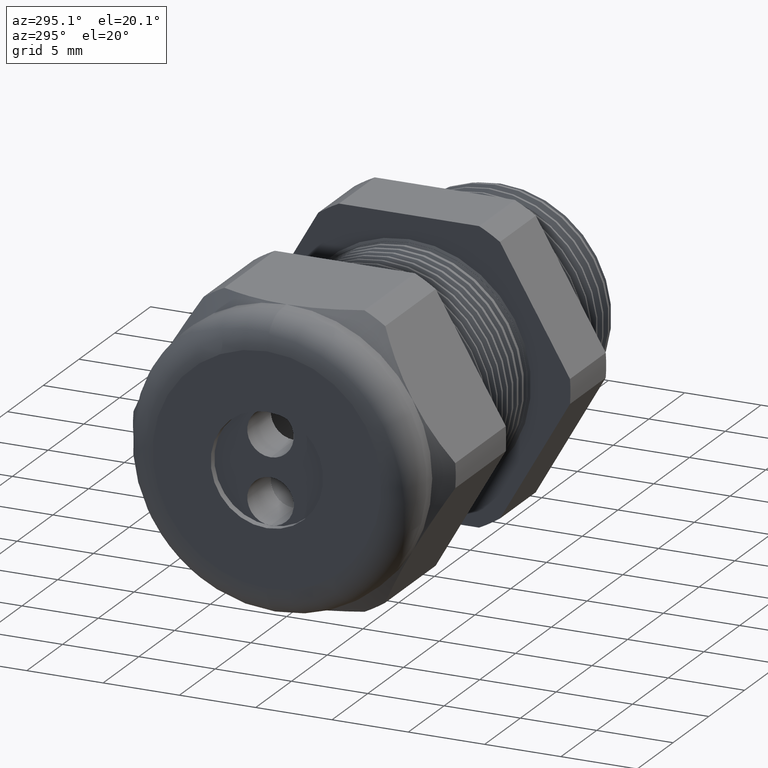
[diagram: clean part render]
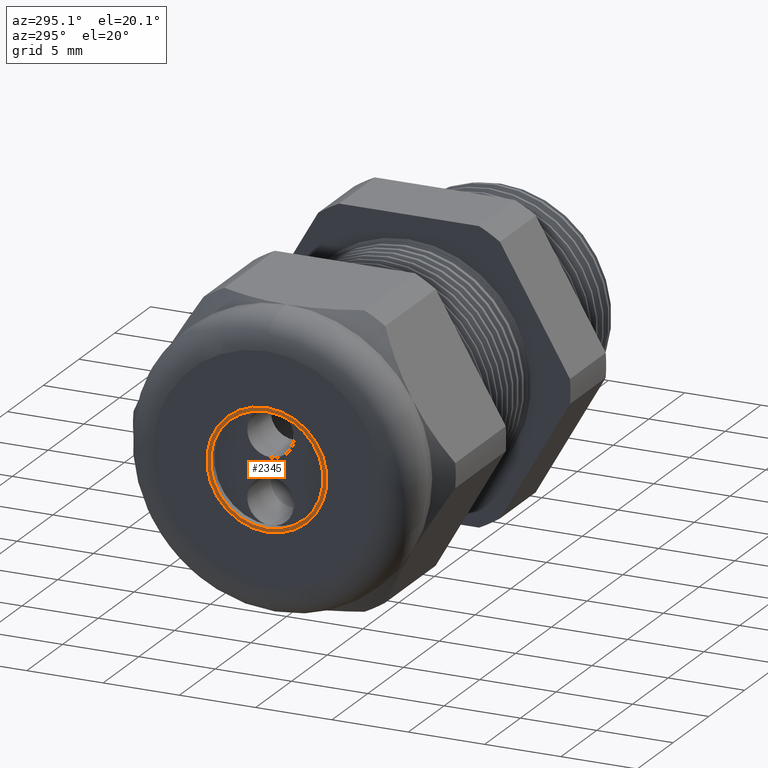
[diagram: same view with one face highlighted and labeled with its STEP entity id]
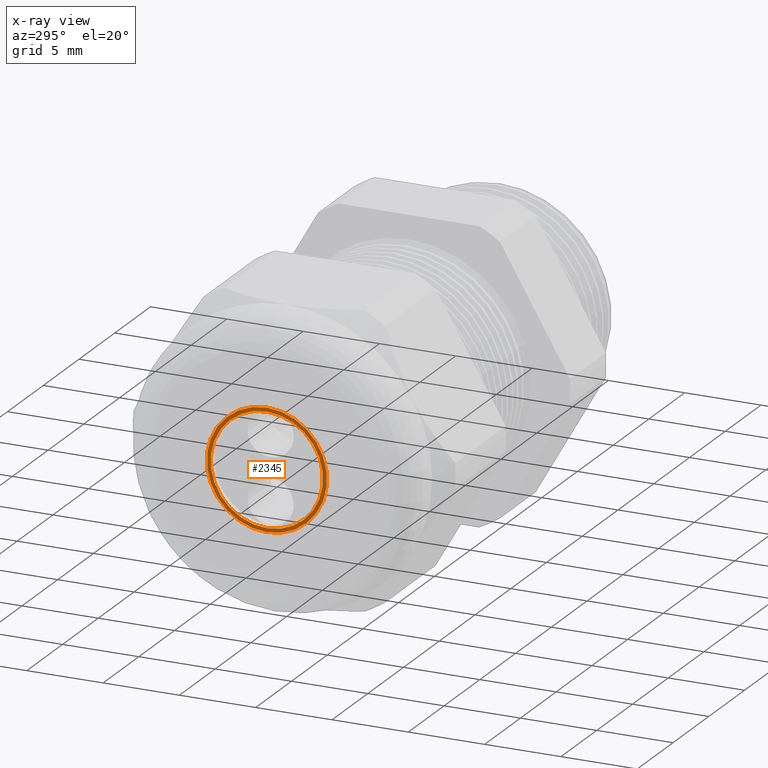
[diagram: x-ray of the same camera — body ghosted, the highlighted face saturated]
A machine part, auxiliary view. The second image highlights one B-rep face of the part: STEP entity #2345.
The next image is the same camera in x-ray: the body ghosted, the highlighted face saturated — about 0% of this face is hidden behind the body in this view.
In plain terms, the highlighted planar face has unit normal (-1, 0, 0).
Its self-contained STEP definition (entity closure, byte-faithful):
#41 = PLANE ( 'NONE',  #101 ) ;
#42 = FACE_OUTER_BOUND ( 'NONE', #2341, .T. ) ;
#43 = FACE_BOUND ( 'NONE', #2287, .T. ) ;
#45 = DIRECTION ( 'NONE',  ( 0.0000000000000000000, 0.0000000000000000000, 1.000000000000000000 ) ) ;
#46 = DIRECTION ( 'NONE',  ( -1.000000000000000000, 0.0000000000000000000, 0.0000000000000000000 ) ) ;
#47 = AXIS2_PLACEMENT_3D ( 'NONE', #52, #46, #45 ) ;
#48 = CIRCLE ( 'NONE', #47, 0.1449999999999999900 ) ;
#52 = CARTESIAN_POINT ( 'NONE',  ( -1.289999999999999800, 0.0000000000000000000, 0.0000000000000000000 ) ) ;
#98 = DIRECTION ( 'NONE',  ( 0.0000000000000000000, 0.0000000000000000000, 1.000000000000000000 ) ) ;
#99 = DIRECTION ( 'NONE',  ( -1.000000000000000000, 0.0000000000000000000, 0.0000000000000000000 ) ) ;
#100 = CARTESIAN_POINT ( 'NONE',  ( -1.289999999999999800, 0.0000000000000000000, 0.0000000000000000000 ) ) ;
#101 = AXIS2_PLACEMENT_3D ( 'NONE', #100, #99, #98 ) ;
#278 = CARTESIAN_POINT ( 'NONE',  ( -1.289999999999999800, 0.0000000000000000000, 0.1449999999999999900 ) ) ;
#279 = CARTESIAN_POINT ( 'NONE',  ( -1.289999999999999800, 1.775737858763661900E-017, -0.1449999999999999900 ) ) ;
#380 = DIRECTION ( 'NONE',  ( 0.0000000000000000000, 0.0000000000000000000, 1.000000000000000000 ) ) ;
#381 = DIRECTION ( 'NONE',  ( -1.000000000000000000, 0.0000000000000000000, 0.0000000000000000000 ) ) ;
#382 = CARTESIAN_POINT ( 'NONE',  ( -1.289999999999999800, 0.0000000000000000000, 0.0000000000000000000 ) ) ;
#383 = AXIS2_PLACEMENT_3D ( 'NONE', #382, #381, #380 ) ;
#384 = CIRCLE ( 'NONE', #383, 0.1449999999999999900 ) ;
#385 = CARTESIAN_POINT ( 'NONE',  ( -1.289999999999999800, 1.898202538678397000E-017, -0.1550000000000000000 ) ) ;
#413 = CARTESIAN_POINT ( 'NONE',  ( -1.289999999999999800, 0.0000000000000000000, 0.1550000000000000000 ) ) ;
#414 = DIRECTION ( 'NONE',  ( 0.0000000000000000000, 0.0000000000000000000, 1.000000000000000000 ) ) ;
#415 = DIRECTION ( 'NONE',  ( -1.000000000000000000, 0.0000000000000000000, 0.0000000000000000000 ) ) ;
#416 = CARTESIAN_POINT ( 'NONE',  ( -1.289999999999999800, 0.0000000000000000000, 0.0000000000000000000 ) ) ;
#417 = AXIS2_PLACEMENT_3D ( 'NONE', #416, #415, #414 ) ;
#418 = CIRCLE ( 'NONE', #417, 0.1550000000000000000 ) ;
#2278 = EDGE_CURVE ( 'NONE', #2489, #2505, #4793, .T. ) ;
#2287 = EDGE_LOOP ( 'NONE', ( #2332, #2333 ) ) ;
#2332 = ORIENTED_EDGE ( 'NONE', *, *, #2338, .F. ) ;
#2333 = ORIENTED_EDGE ( 'NONE', *, *, #2492, .F. ) ;
#2334 = ORIENTED_EDGE ( 'NONE', *, *, #2504, .T. ) ;
#2338 = EDGE_CURVE ( 'NONE', #2452, #2451, #48, .T. ) ;
#2339 = ORIENTED_EDGE ( 'NONE', *, *, #2278, .T. ) ;
#2341 = EDGE_LOOP ( 'NONE', ( #2334, #2339 ) ) ;
#2345 = ADVANCED_FACE ( 'NONE', ( #43, #42 ), #41, .T. ) ;
#2451 = VERTEX_POINT ( 'NONE', #279 ) ;
#2452 = VERTEX_POINT ( 'NONE', #278 ) ;
#2489 = VERTEX_POINT ( 'NONE', #385 ) ;
#2492 = EDGE_CURVE ( 'NONE', #2451, #2452, #384, .T. ) ;
#2504 = EDGE_CURVE ( 'NONE', #2505, #2489, #418, .T. ) ;
#2505 = VERTEX_POINT ( 'NONE', #413 ) ;
#4789 = DIRECTION ( 'NONE',  ( 0.0000000000000000000, 0.0000000000000000000, 1.000000000000000000 ) ) ;
#4790 = DIRECTION ( 'NONE',  ( -1.000000000000000000, 0.0000000000000000000, 0.0000000000000000000 ) ) ;
#4791 = CARTESIAN_POINT ( 'NONE',  ( -1.289999999999999800, 0.0000000000000000000, 0.0000000000000000000 ) ) ;
#4792 = AXIS2_PLACEMENT_3D ( 'NONE', #4791, #4790, #4789 ) ;
#4793 = CIRCLE ( 'NONE', #4792, 0.1550000000000000000 ) ;